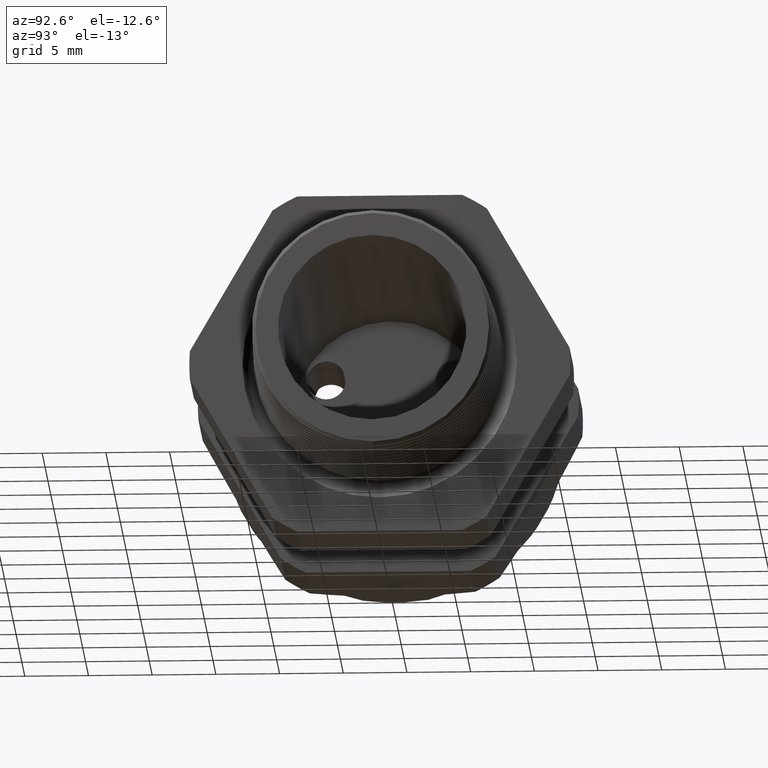
[diagram: clean part render]
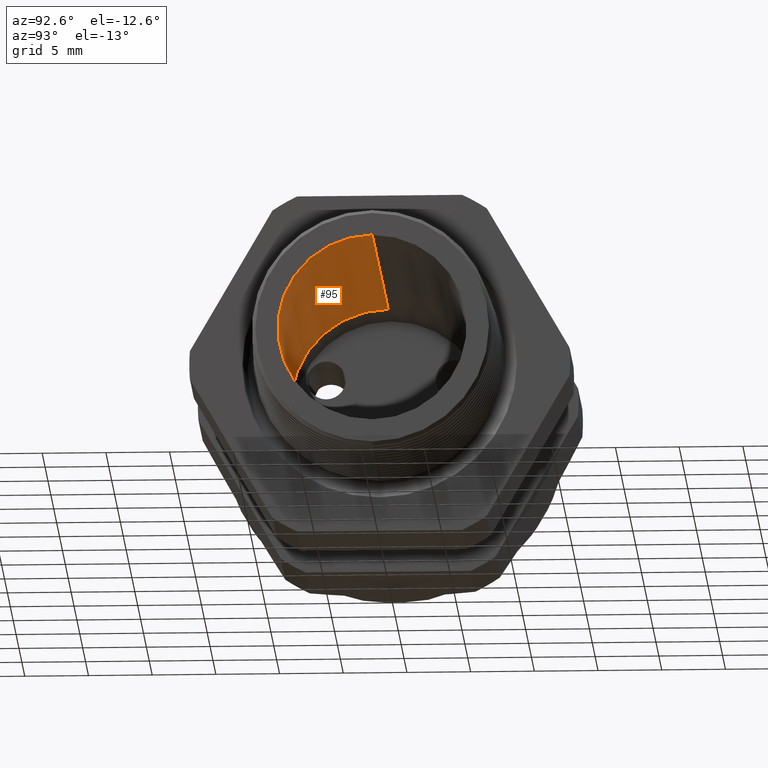
[diagram: same view with one face highlighted and labeled with its STEP entity id]
A machine part, auxiliary view. The second image highlights one B-rep face of the part: STEP entity #95.
In plain terms, the highlighted conical surface has half-angle 0.424 deg.
Its self-contained STEP definition (entity closure, byte-faithful):
#95 = ADVANCED_FACE ( 'NONE', ( #1725 ), #1723, .F. ) ;
#112 = EDGE_LOOP ( 'NONE', ( #1550, #149, #146, #143 ) ) ;
#143 = ORIENTED_EDGE ( 'NONE', *, *, #144, .F. ) ;
#144 = EDGE_CURVE ( 'NONE', #147, #145, #1872, .T. ) ;
#145 = VERTEX_POINT ( 'NONE', #1863 ) ;
#146 = ORIENTED_EDGE ( 'NONE', *, *, #153, .F. ) ;
#147 = VERTEX_POINT ( 'NONE', #1862 ) ;
#148 = EDGE_CURVE ( 'NONE', #147, #150, #1861, .T. ) ;
#149 = ORIENTED_EDGE ( 'NONE', *, *, #151, .T. ) ;
#150 = VERTEX_POINT ( 'NONE', #1856 ) ;
#151 = EDGE_CURVE ( 'NONE', #150, #152, #1855, .T. ) ;
#152 = VERTEX_POINT ( 'NONE', #1851 ) ;
#153 = EDGE_CURVE ( 'NONE', #145, #152, #1850, .T. ) ;
#1550 = ORIENTED_EDGE ( 'NONE', *, *, #148, .T. ) ;
#1723 = CONICAL_SURFACE ( 'NONE', #1724, 0.2999999999999999900, 0.007405648909184102100 ) ;
#1724 = AXIS2_PLACEMENT_3D ( 'NONE', #1785, #1784, #1783 ) ;
#1725 = FACE_OUTER_BOUND ( 'NONE', #112, .T. ) ;
#1783 = DIRECTION ( 'NONE',  ( 0.0000000000000000000, 0.0000000000000000000, 1.000000000000000000 ) ) ;
#1784 = DIRECTION ( 'NONE',  ( -1.000000000000000000, 0.0000000000000000000, 0.0000000000000000000 ) ) ;
#1785 = CARTESIAN_POINT ( 'NONE',  ( -0.8903149606299211000, 0.0000000000000000000, 0.0000000000000000000 ) ) ;
#1850 = CIRCLE ( 'NONE', #1912, 0.2999999999999999900 ) ;
#1851 = CARTESIAN_POINT ( 'NONE',  ( -0.8903149606299211000, 0.0000000000000000000, -0.2999999999999999900 ) ) ;
#1852 = DIRECTION ( 'NONE',  ( -0.9999725783074426800, 9.069221333532394100E-019, -0.007405581217251161100 ) ) ;
#1853 = VECTOR ( 'NONE', #1852, 39.37007874015748900 ) ;
#1854 = CARTESIAN_POINT ( 'NONE',  ( -0.8903149606299211000, 3.673940397442058900E-017, -0.2999999999999999900 ) ) ;
#1855 = LINE ( 'NONE', #1854, #1853 ) ;
#1856 = CARTESIAN_POINT ( 'NONE',  ( 0.2000000000000000400, 3.624497503128140000E-017, -0.2919253625864464100 ) ) ;
#1857 = DIRECTION ( 'NONE',  ( 0.0000000000000000000, 0.0000000000000000000, -1.000000000000000000 ) ) ;
#1858 = DIRECTION ( 'NONE',  ( 1.000000000000000000, 0.0000000000000000000, 0.0000000000000000000 ) ) ;
#1859 = CARTESIAN_POINT ( 'NONE',  ( 0.2000000000000000400, 0.0000000000000000000, 0.0000000000000000000 ) ) ;
#1860 = AXIS2_PLACEMENT_3D ( 'NONE', #1859, #1858, #1857 ) ;
#1861 = CIRCLE ( 'NONE', #1860, 0.2919253625864464100 ) ;
#1862 = CARTESIAN_POINT ( 'NONE',  ( 0.2000000000000000400, 0.0000000000000000000, 0.2919253625864464100 ) ) ;
#1863 = CARTESIAN_POINT ( 'NONE',  ( -0.8903149606299211000, 3.673940397442058900E-017, 0.2999999999999999900 ) ) ;
#1864 = DIRECTION ( 'NONE',  ( -0.9999725783074426800, 0.0000000000000000000, 0.007405581217251161100 ) ) ;
#1865 = VECTOR ( 'NONE', #1864, 39.37007874015748900 ) ;
#1866 = CARTESIAN_POINT ( 'NONE',  ( -0.8903149606299211000, 0.0000000000000000000, 0.2999999999999999900 ) ) ;
#1872 = LINE ( 'NONE', #1866, #1865 ) ;
#1909 = DIRECTION ( 'NONE',  ( 0.0000000000000000000, 0.0000000000000000000, -1.000000000000000000 ) ) ;
#1910 = DIRECTION ( 'NONE',  ( 1.000000000000000000, 0.0000000000000000000, 0.0000000000000000000 ) ) ;
#1911 = CARTESIAN_POINT ( 'NONE',  ( -0.8903149606299211000, 0.0000000000000000000, 0.0000000000000000000 ) ) ;
#1912 = AXIS2_PLACEMENT_3D ( 'NONE', #1911, #1910, #1909 ) ;